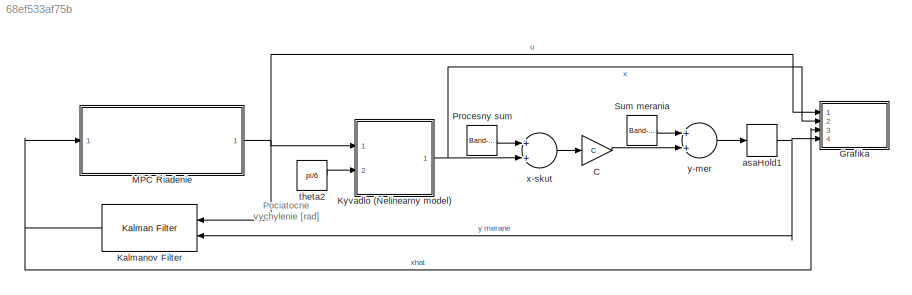
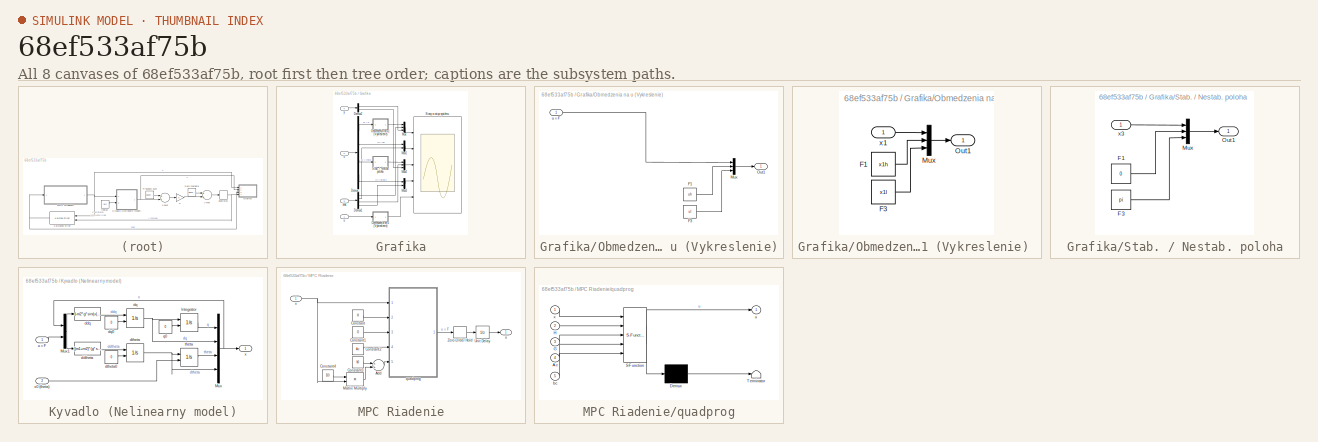
[diagram: thumbnail index - all 8 canvases of the model, root first then tree order]
MODEL slx_68ef533af75b
KIND model
CONFIG AbsTol = auto
CONFIG EnableMultiTasking = on
CONFIG FixedStep = auto
CONFIG MaxStep = 0.01
CONFIG MinStep = auto
CONFIG PreLoadFcn = m1=0.4;        % Hmotnost vozika [kg]\nm2=0.08;      % Hmotnost kyvadla [kg]\nl=0.2;            % Vzdialenost taziska od osi rotacie [m]\ng=9.81;         % Tiazove zrychlenie [m/s2]\nb=0.1;           % Koeficient trenia [m/s]
CONFIG RelTol = 1e-3
CONFIG SampleTimeConstraint = Unconstrained
CONFIG Solver = VariableStepAuto
CONFIG SolverName = VariableStepAuto
CONFIG StartFcn = kyvadloOfflineMPCaKF
CONFIG StartTime = 0.0
CONFIG StopTime = 10
BLOCK [Sum]  y-mer 
  InputSameDT = off
  OutDataTypeStr = Inherit: Inherit via internal rule
  Ports = [2, 1]
  SaturateOnIntegerOverflow = off
BLOCK [Gain] C
  Gain = C
  Multiplication = Matrix(K*u)
  OutDataTypeStr = Inherit: Inherit via internal rule
  ParamDataTypeStr = Inherit: Inherit via internal rule
  SaturateOnIntegerOverflow = off
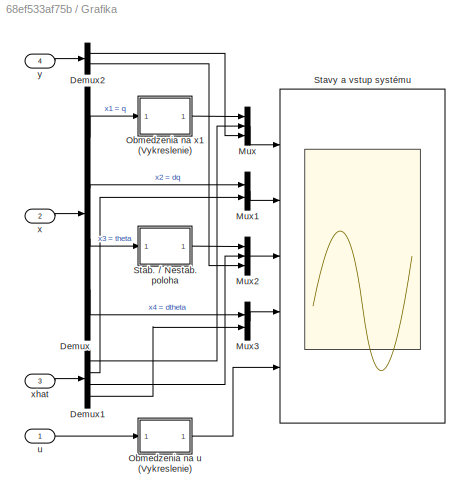
BLOCK [SubSystem] Grafika
  Ports = [4]
  RequestExecContextInheritance = off
BLOCK [Scope] Grafika/ Stavy a vstup systému
  Floating = off
  NumInputPorts = 5
  Ports = [5]
  ScopeSpecificationString = Simulink.scopes.TimeScopeBlockCfg('CurrentConfiguration', extmgr.ConfigurationSet(extmgr.Configuration('Core','General UI',true,'FigureColor',[1 1 1]),extmgr.Configuration('Core','Source UI',true),extmgr.Configuration('Sources','WiredSimulink',true,'DataLoggingSaveFormat','Structure','DataLoggingDecimation','1','DataLoggingDecimateData',true,'DataLogging',true,'DataLoggingVariableName','imp_nonlin...<+7919ch>
BLOCK [Demux] Grafika/Demux
  DisplayOption = bar
  Ports = [1, 4]
BLOCK [Demux] Grafika/Demux1
  DisplayOption = bar
  Ports = [1, 4]
BLOCK [Demux] Grafika/Demux2
  DisplayOption = bar
  Outputs = 2
  Ports = [1, 2]
BLOCK [Mux] Grafika/Mux
  DisplayOption = bar
  Inputs = 3
  Ports = [3, 1]
BLOCK [Mux] Grafika/Mux1
  DisplayOption = bar
  Inputs = 2
  Ports = [2, 1]
BLOCK [Mux] Grafika/Mux2
  DisplayOption = bar
  Inputs = 3
  Ports = [3, 1]
BLOCK [Mux] Grafika/Mux3
  DisplayOption = bar
  Inputs = 2
  Ports = [2, 1]
BLOCK [SubSystem] Grafika/Obmedzenia na u (Vykreslenie)
  Ports = [1, 1]
  RequestExecContextInheritance = off
BLOCK [Constant] Grafika/Obmedzenia na u (Vykreslenie)/F1
  Value = uh
BLOCK [Constant] Grafika/Obmedzenia na u (Vykreslenie)/F3
  Value = ul
BLOCK [Mux] Grafika/Obmedzenia na u (Vykreslenie)/Mux
  DisplayOption = bar
  Inputs = 3
  Ports = [3, 1]
BLOCK [Outport] Grafika/Obmedzenia na u (Vykreslenie)/Out1
  IconDisplay = Port number
BLOCK [Inport] Grafika/Obmedzenia na u (Vykreslenie)/u = F
  IconDisplay = Port number
BLOCK [SubSystem] Grafika/Obmedzenia na x1 (Vykreslenie) 
  Ports = [1, 1]
  RequestExecContextInheritance = off
BLOCK [Constant] Grafika/Obmedzenia na x1 (Vykreslenie) /F1
  Value = x1h
BLOCK [Constant] Grafika/Obmedzenia na x1 (Vykreslenie) /F3
  Value = x1l
BLOCK [Mux] Grafika/Obmedzenia na x1 (Vykreslenie) /Mux
  DisplayOption = bar
  Inputs = 3
  Ports = [3, 1]
BLOCK [Outport] Grafika/Obmedzenia na x1 (Vykreslenie) /Out1
  IconDisplay = Port number
BLOCK [Inport] Grafika/Obmedzenia na x1 (Vykreslenie) /x1
  IconDisplay = Port number
BLOCK [SubSystem] Grafika/Stab. // Nestab. poloha
  Ports = [1, 1]
  RequestExecContextInheritance = off
BLOCK [Constant] Grafika/Stab. // Nestab. poloha/F1
  Value = 0
BLOCK [Constant] Grafika/Stab. // Nestab. poloha/F3
  Value = pi
BLOCK [Mux] Grafika/Stab. // Nestab. poloha/Mux
  DisplayOption = bar
  Inputs = 3
  Ports = [3, 1]
BLOCK [Outport] Grafika/Stab. // Nestab. poloha/Out1
  IconDisplay = Port number
BLOCK [Inport] Grafika/Stab. // Nestab. poloha/x3
  IconDisplay = Port number
BLOCK [Inport] Grafika/u
  IconDisplay = Port number
BLOCK [Inport] Grafika/x
  IconDisplay = Port number
  Port = 2
BLOCK [Inport] Grafika/xhat
  IconDisplay = Port number
  Port = 3
BLOCK [Inport] Grafika/y
  IconDisplay = Port number
  Port = 4
BLOCK [Reference] Kalmanov Filter  REF=ctrlSharedLib/Kalman Filter
  Ports = [2, 1]
  SourceBlock = ctrlSharedLib/Kalman Filter
  SourceProductBaseCode = CT
  SourceProductName = Control System Toolbox
  SourceType = ctrlKalmanFilter
BLOCK [SubSystem] Kyvadlo (Nelinearny model)
  Ports = [2, 1]
  RequestExecContextInheritance = off
BLOCK [Integrator] Kyvadlo (Nelinearny model)/Integrator
  InitialConditionSource = external
  Ports = [2, 1]
BLOCK [Mux] Kyvadlo (Nelinearny model)/Mux
  DisplayOption = bar
  Ports = [4, 1]
BLOCK [Mux] Kyvadlo (Nelinearny model)/Mux1
  DisplayOption = bar
  Inputs = 2
  Ports = [2, 1]
BLOCK [Fcn] Kyvadlo (Nelinearny model)/ddq
  Expr = (-m2*g*sin(u(3))*cos(u(3))+m2*l*((u(4))^2)*sin(u(3))+b*m2*u(4)*cos(u(3))+u(5))/(m1+(1-(cos(u(3)))^2)*m2)
BLOCK [Fcn] Kyvadlo (Nelinearny model)/ddtheta
  Expr = ((m1+m2)*(g*sin(u(3))-b*u(4))-(m2*l*((u(4))^2)*sin(u(3))+u(5))*cos(u(3)))/(l*(m1+(1-(cos(u(3)))^2)*m2))
BLOCK [Integrator] Kyvadlo (Nelinearny model)/dq
  InitialConditionSource = external
  Ports = [2, 1]
BLOCK [Constant] Kyvadlo (Nelinearny model)/dq0
  Value = 0
BLOCK [Integrator] Kyvadlo (Nelinearny model)/dtheta
  InitialConditionSource = external
  Ports = [2, 1]
BLOCK [Constant] Kyvadlo (Nelinearny model)/dtheta0
  Value = 0
BLOCK [Constant] Kyvadlo (Nelinearny model)/q0
  Value = 0
BLOCK [Integrator] Kyvadlo (Nelinearny model)/theta
  InitialConditionSource = external
  Ports = [2, 1]
BLOCK [Inport] Kyvadlo (Nelinearny model)/u = F
  IconDisplay = Port number
BLOCK [Outport] Kyvadlo (Nelinearny model)/x
  IconDisplay = Port number
BLOCK [Inport] Kyvadlo (Nelinearny model)/x0 (theta)
  IconDisplay = Port number
  Port = 2
BLOCK [SubSystem] MPC Riadenie
  Ports = [1, 1]
  RequestExecContextInheritance = off
BLOCK [Sum] MPC Riadenie/Add
  InputSameDT = off
  OutDataTypeStr = Inherit: Inherit via internal rule
  Ports = [2, 1]
  SaturateOnIntegerOverflow = off
BLOCK [Constant] MPC Riadenie/Constant
  Value = H
BLOCK [Constant] MPC Riadenie/Constant1
  Value = G
BLOCK [Constant] MPC Riadenie/Constant2
  Value = Ac
BLOCK [Constant] MPC Riadenie/Constant3
  Value = b0
BLOCK [Constant] MPC Riadenie/Constant4
  Value = B0
BLOCK [Product] MPC Riadenie/Matrix Multiply
  InputSameDT = off
  Multiplication = Matrix(*)
  OutDataTypeStr = Inherit: Inherit via internal rule
  Ports = [2, 1]
  RndMeth = Floor
  SaturateOnIntegerOverflow = off
BLOCK [UnitDelay] MPC Riadenie/Unit Delay
  InputProcessing = Elements as channels (sample based)
  SampleTime = -1
BLOCK [ZeroOrderHold] MPC Riadenie/Zero-Order Hold
  SampleTime = Ts
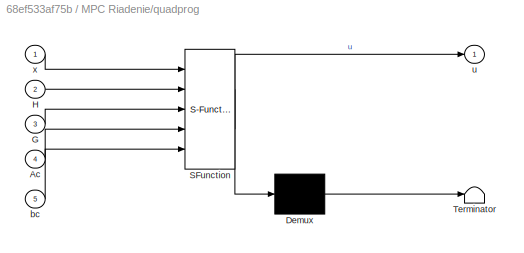
BLOCK [SubSystem] MPC Riadenie/quadprog
  ErrorFcn = Stateflow.Translate.translate
  PermitHierarchicalResolution = ExplicitOnly
  Ports = [5, 1]
  RequestExecContextInheritance = off
  SFBlockType = MATLAB Function
  TreatAsAtomicUnit = on
BLOCK [Demux] MPC Riadenie/quadprog/ Demux 
  Outputs = 1
  Ports = [1, 1]
BLOCK [S-Function] MPC Riadenie/quadprog/ SFunction 
  EnableBusSupport = on
  FunctionName = sf_sfun
  PortCounts = [5 2]
  Ports = [5, 2]
  SFcnIsStateOwnerBlock = off
  SFunctionDeploymentMode = off
  Tag = Stateflow S-Function kyvadloMPCaKF 2
BLOCK [Terminator] MPC Riadenie/quadprog/ Terminator 
BLOCK [Inport] MPC Riadenie/quadprog/Ac
  IconDisplay = Port number
  Port = 4
BLOCK [Inport] MPC Riadenie/quadprog/G
  IconDisplay = Port number
  Port = 3
BLOCK [Inport] MPC Riadenie/quadprog/H
  IconDisplay = Port number
  Port = 2
BLOCK [Inport] MPC Riadenie/quadprog/bc
  IconDisplay = Port number
  Port = 5
BLOCK [Outport] MPC Riadenie/quadprog/u
  IconDisplay = Port number
BLOCK [Inport] MPC Riadenie/quadprog/x
  IconDisplay = Port number
BLOCK [Outport] MPC Riadenie/u
  IconDisplay = Port number
BLOCK [Inport] MPC Riadenie/x
  IconDisplay = Port number
BLOCK [Reference] Procesny sum  REF=simulink/Sources/Band-Limited
White Noise
  Ports = [0, 1]
  SourceBlock = simulink/Sources/Band-Limited\nWhite Noise
  SourceProductBaseCode = SL
  SourceProductName = Simulink
  SourceType = Band-Limited White Noise.
BLOCK [Reference] Sum merania  REF=simulink/Sources/Band-Limited
White Noise
  Ports = [0, 1]
  SourceBlock = simulink/Sources/Band-Limited\nWhite Noise
  SourceProductBaseCode = SL
  SourceProductName = Simulink
  SourceType = Band-Limited White Noise.
BLOCK [ZeroOrderHold] asaHold1
  SampleTime = Ts
BLOCK [Constant] theta2
  Value = pi/6
BLOCK [Sum] x-skut
  InputSameDT = off
  OutDataTypeStr = Inherit: Inherit via internal rule
  Ports = [2, 1]
  SaturateOnIntegerOverflow = off
ANNOTATION (root): Pociatocne vychylenie [rad]
LINE  y-mer :1 -> asaHold1:1
LINE C:1 ->  y-mer :2
LINE Grafika/Demux1:1 -> Grafika/Mux:2
LINE Grafika/Demux1:2 -> Grafika/Mux1:2
LINE Grafika/Demux1:3 -> Grafika/Mux2:2
LINE Grafika/Demux1:4 -> Grafika/Mux3:2
LINE Grafika/Demux2:1 -> Grafika/Mux:3
LINE Grafika/Demux2:2 -> Grafika/Mux2:3
LINE Grafika/Demux:1 -> Grafika/Obmedzenia na x1 (Vykreslenie) :1
LINE Grafika/Demux:2 -> Grafika/Mux1:1
LINE Grafika/Demux:3 -> Grafika/Stab. // Nestab. poloha:1
LINE Grafika/Demux:4 -> Grafika/Mux3:1
LINE Grafika/Mux1:1 -> Grafika/ Stavy a vstup systému:2
LINE Grafika/Mux2:1 -> Grafika/ Stavy a vstup systému:3
LINE Grafika/Mux3:1 -> Grafika/ Stavy a vstup systému:4
LINE Grafika/Mux:1 -> Grafika/ Stavy a vstup systému:1
LINE Grafika/Obmedzenia na u (Vykreslenie)/F1:1 -> Grafika/Obmedzenia na u (Vykreslenie)/Mux:2
LINE Grafika/Obmedzenia na u (Vykreslenie)/F3:1 -> Grafika/Obmedzenia na u (Vykreslenie)/Mux:3
LINE Grafika/Obmedzenia na u (Vykreslenie)/Mux:1 -> Grafika/Obmedzenia na u (Vykreslenie)/Out1:1
LINE Grafika/Obmedzenia na u (Vykreslenie)/u = F:1 -> Grafika/Obmedzenia na u (Vykreslenie)/Mux:1
LINE Grafika/Obmedzenia na u (Vykreslenie):1 -> Grafika/ Stavy a vstup systému:5
LINE Grafika/Obmedzenia na x1 (Vykreslenie) /F1:1 -> Grafika/Obmedzenia na x1 (Vykreslenie) /Mux:2
LINE Grafika/Obmedzenia na x1 (Vykreslenie) /F3:1 -> Grafika/Obmedzenia na x1 (Vykreslenie) /Mux:3
LINE Grafika/Obmedzenia na x1 (Vykreslenie) /Mux:1 -> Grafika/Obmedzenia na x1 (Vykreslenie) /Out1:1
LINE Grafika/Obmedzenia na x1 (Vykreslenie) /x1:1 -> Grafika/Obmedzenia na x1 (Vykreslenie) /Mux:1
LINE Grafika/Obmedzenia na x1 (Vykreslenie) :1 -> Grafika/Mux:1
LINE Grafika/Stab. // Nestab. poloha/F1:1 -> Grafika/Stab. // Nestab. poloha/Mux:2
LINE Grafika/Stab. // Nestab. poloha/F3:1 -> Grafika/Stab. // Nestab. poloha/Mux:3
LINE Grafika/Stab. // Nestab. poloha/Mux:1 -> Grafika/Stab. // Nestab. poloha/Out1:1
LINE Grafika/Stab. // Nestab. poloha/x3:1 -> Grafika/Stab. // Nestab. poloha/Mux:1
LINE Grafika/Stab. // Nestab. poloha:1 -> Grafika/Mux2:1
LINE Grafika/u:1 -> Grafika/Obmedzenia na u (Vykreslenie):1
LINE Grafika/x:1 -> Grafika/Demux:1
LINE Grafika/xhat:1 -> Grafika/Demux1:1
LINE Grafika/y:1 -> Grafika/Demux2:1
NET Kalmanov Filter:1 -> Grafika:3, MPC Riadenie:1
LINE Kyvadlo (Nelinearny model)/Integrator:1 -> Kyvadlo (Nelinearny model)/Mux:1
NET Kyvadlo (Nelinearny model)/Mux1:1 -> Kyvadlo (Nelinearny model)/ddq:1, Kyvadlo (Nelinearny model)/ddtheta:1
NET Kyvadlo (Nelinearny model)/Mux:1 -> Kyvadlo (Nelinearny model)/Mux1:1, Kyvadlo (Nelinearny model)/x:1
LINE Kyvadlo (Nelinearny model)/ddq:1 -> Kyvadlo (Nelinearny model)/dq:1
LINE Kyvadlo (Nelinearny model)/ddtheta:1 -> Kyvadlo (Nelinearny model)/dtheta:1
LINE Kyvadlo (Nelinearny model)/dq0:1 -> Kyvadlo (Nelinearny model)/dq:2
NET Kyvadlo (Nelinearny model)/dq:1 -> Kyvadlo (Nelinearny model)/Integrator:1, Kyvadlo (Nelinearny model)/Mux:2
LINE Kyvadlo (Nelinearny model)/dtheta0:1 -> Kyvadlo (Nelinearny model)/dtheta:2
NET Kyvadlo (Nelinearny model)/dtheta:1 -> Kyvadlo (Nelinearny model)/Mux:4, Kyvadlo (Nelinearny model)/theta:1
LINE Kyvadlo (Nelinearny model)/q0:1 -> Kyvadlo (Nelinearny model)/Integrator:2
LINE Kyvadlo (Nelinearny model)/theta:1 -> Kyvadlo (Nelinearny model)/Mux:3
LINE Kyvadlo (Nelinearny model)/u = F:1 -> Kyvadlo (Nelinearny model)/Mux1:2
LINE Kyvadlo (Nelinearny model)/x0 (theta):1 -> Kyvadlo (Nelinearny model)/theta:2
NET Kyvadlo (Nelinearny model):1 -> Grafika:2, x-skut:2
LINE MPC Riadenie/Add:1 -> MPC Riadenie/quadprog:5
LINE MPC Riadenie/Constant1:1 -> MPC Riadenie/quadprog:3
LINE MPC Riadenie/Constant2:1 -> MPC Riadenie/quadprog:4
LINE MPC Riadenie/Constant3:1 -> MPC Riadenie/Add:1
LINE MPC Riadenie/Constant4:1 -> MPC Riadenie/Matrix Multiply:1
LINE MPC Riadenie/Constant:1 -> MPC Riadenie/quadprog:2
LINE MPC Riadenie/Matrix Multiply:1 -> MPC Riadenie/Add:2
LINE MPC Riadenie/Unit Delay:1 -> MPC Riadenie/u:1
LINE MPC Riadenie/Zero-Order Hold:1 -> MPC Riadenie/Unit Delay:1
LINE MPC Riadenie/quadprog:1 -> MPC Riadenie/Zero-Order Hold:1
NET MPC Riadenie/x:1 -> MPC Riadenie/Matrix Multiply:2, MPC Riadenie/quadprog:1
NET MPC Riadenie:1 -> Grafika:1, Kalmanov Filter:1, Kyvadlo (Nelinearny model):1
LINE Procesny sum:1 -> x-skut:1
LINE Sum merania:1 ->  y-mer :1
NET asaHold1:1 -> Grafika:4, Kalmanov Filter:2
LINE theta2:1 -> Kyvadlo (Nelinearny model):2
LINE x-skut:1 -> C:1
note: NET lines group one-source signal fan-out (src -> all destinations, sorted); 1:1 wires keep LINE
CHART MPC Riadenie/quadprog states=1 transitions=1
  STATE_LABEL 'eML_blk_kernel()'
  STATE_LABEL "SCRIPT:\nfunction u  = qp(x,H,G,Ac,bc)      % Riesenie QP  \n    u=0;                           % Inicializacia\n    coder.extrinsic('optimoptions')% Neexistuje C verzia\n    coder.extrinsic('quadprog');   % Neexistuje C verzia\n    o=optimoptions('quadprog','Display','none');% Vypnut \n    U=quadprog(H,G*x,Ac,bc,[],[],[],[],[],o); % Volanie\n    u = U(1);                      % Vystup\n"
